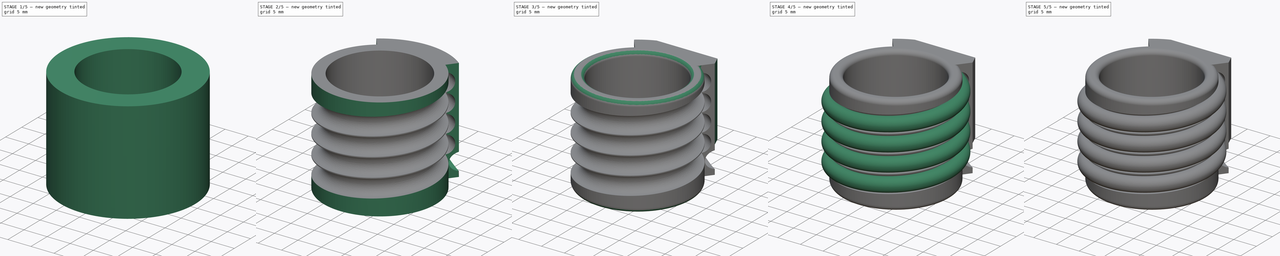
[diagram: build sequence overview — one tinted view per stage of 5, left to right]
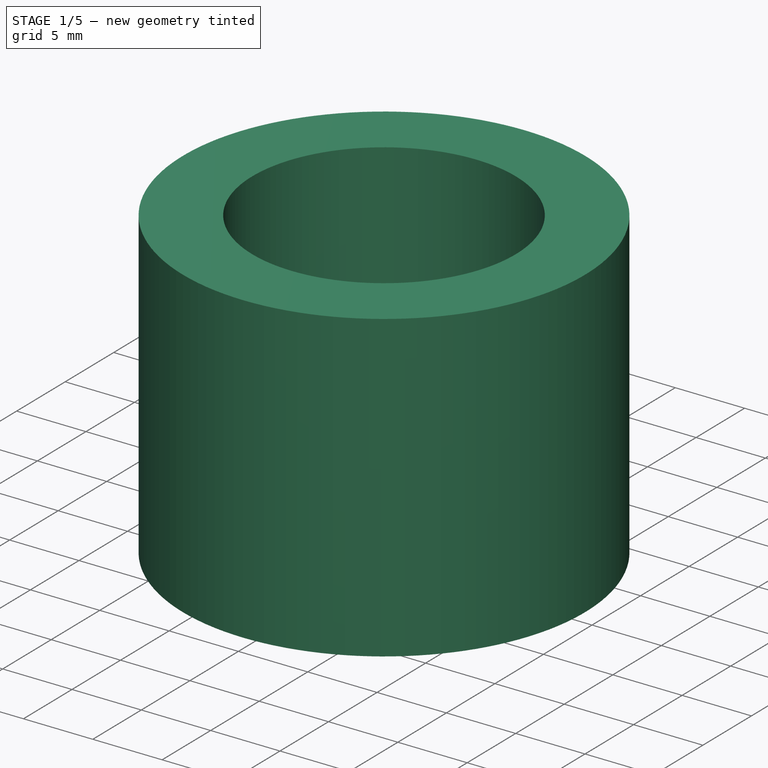
[diagram: stage 1 of 5 — iso view after this stage's code; geometry added in this stage tinted green]
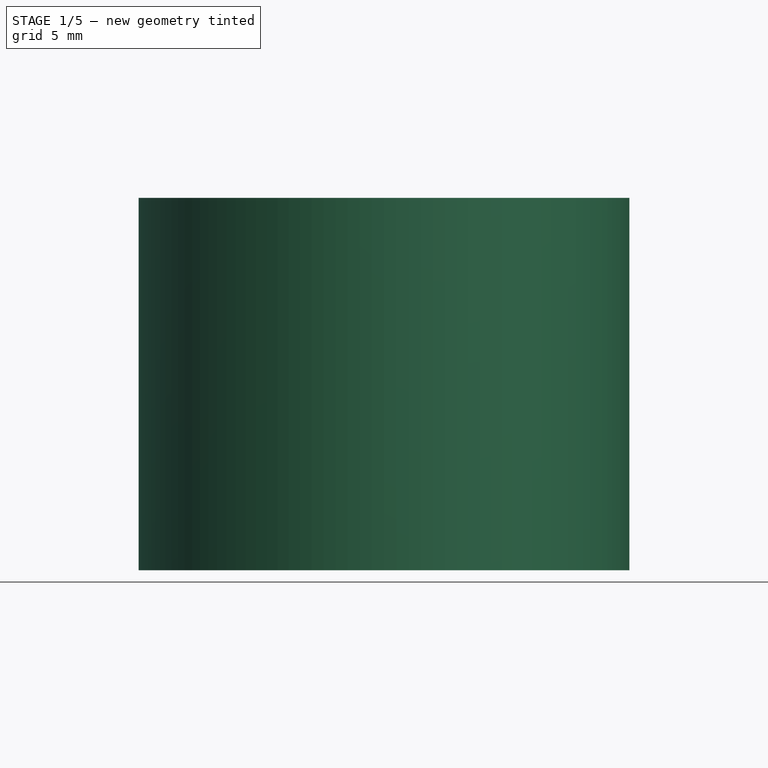
[diagram: stage 1 of 5 — front view after this stage's code; geometry added in this stage tinted green]
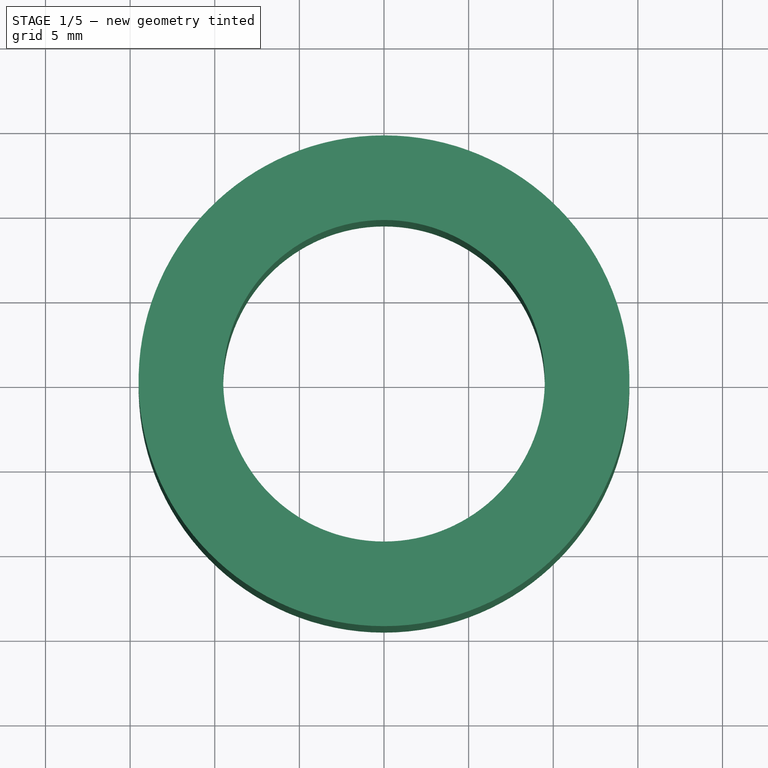
[diagram: stage 1 of 5 — top view after this stage's code; geometry added in this stage tinted green]
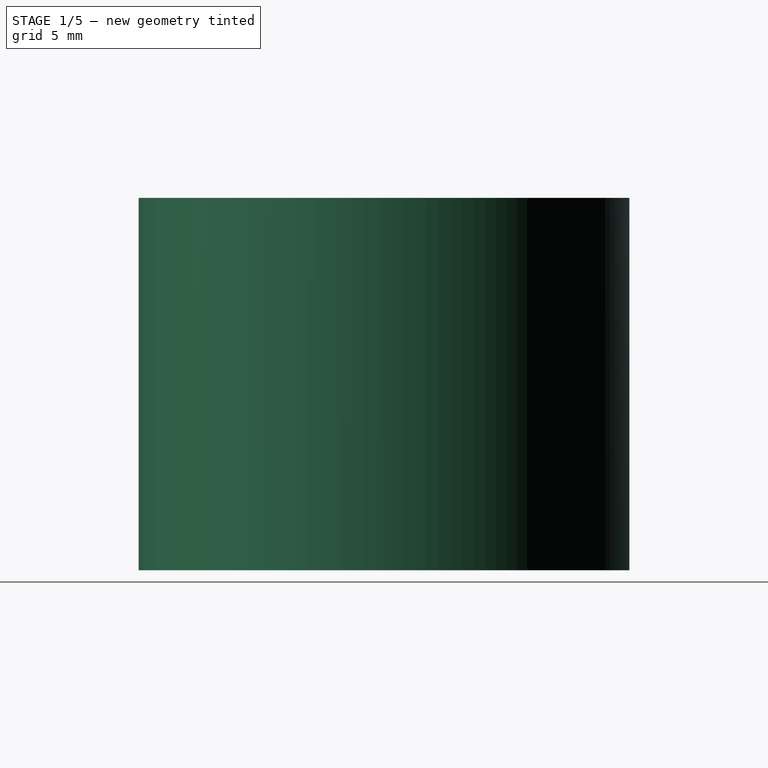
[diagram: stage 1 of 5 — right view after this stage's code; geometry added in this stage tinted green]
FCSTD DOCUMENT  (FreeCAD 1.0R38806 (Git))
Label: LED_ring_v1
License: CERN Open Hardware Licence strongly-reciprocal
LicenseURL: https://cern-ohl.web.cern.ch/
objects: Sketcher::SketchObject×13, Part::Feature×7, PartDesign::Plane×6, PartDesign::Pocket×6, PartDesign::Pad×4, PartDesign::Body×3, PartDesign::AdditiveHelix×2, PartDesign::Fillet×2, PartDesign::SubShapeBinder×2, App::Part×2, PartDesign::Revolution×1, PartDesign::Boolean×1
note: 91 computed .brp shape members not serialized (recipe doc carries the construction recipe); baked Part::Feature solids carry a one-line shape summary decoded from their .brp

FEATURE [PartDesign::Body] Body  label="LED"
  AllowCompound = false
  Group = -> [Sketch,AdditiveHelix,Sketch001,DatumPlane,DatumPlane001,DatumPlane002,Sketch002,Pocket,Sketch003,Pocket001,Pad,Sketch004,Pad001,Fillet]
  Origin = -> Origin
  Tip = -> Fillet
FEATURE [Sketcher::SketchObject] Sketch005
  ArcFitTolerance = 1e-06
  AttachmentSupport = -> [YZ_Plane001]
  FullyConstrained = true
  MakeInternals = false
  MapMode = 5
  Placement = pos=(0,0,0) rot=(0.57735,0.57735,0.57735;2.0944rad)
  sketch-geometry (10):
    g0: LineSegment StartX=14.5 StartY=19 StartZ=0 EndX=9.5 EndY=19 EndZ=0
    g1: LineSegment StartX=9.5 StartY=19 StartZ=0 EndX=9.5 EndY=-3 EndZ=0
    g2: LineSegment StartX=9.5 StartY=-3 StartZ=0 EndX=14.5 EndY=-3 EndZ=0
    g3: LineSegment StartX=14.5 StartY=-3 StartZ=0 EndX=14.5 EndY=19 EndZ=0
    g4: LineSegment [constr] StartX=12 StartY=0 StartZ=0 EndX=12 EndY=4 EndZ=0
    g5: LineSegment [constr] StartX=12 StartY=4 StartZ=0 EndX=12 EndY=8 EndZ=0
    g6: LineSegment [constr] StartX=12 StartY=8 StartZ=0 EndX=12 EndY=12 EndZ=0
    g7: LineSegment [constr] StartX=12 StartY=12 StartZ=0 EndX=12 EndY=16 EndZ=0
    g8: LineSegment [constr] StartX=12 StartY=0 StartZ=0 EndX=12 EndY=-3 EndZ=0
    g9: LineSegment [constr] StartX=12 StartY=16 StartZ=0 EndX=12 EndY=19 EndZ=0
  constraints (30):
    c: Coincident(g0,g1)
    c: Coincident(g1,g2)
    c: Coincident(g2,g3)
    c: Coincident(g3,g0)
    c: Horizontal(g0)
    c: Horizontal(g2)
    c: Vertical(g1)
    c: Vertical(g3)
    c: Distance(g0,g0) = 5
    c: PointOnObject(g4,g-1)
    c: Vertical(g4)
    c: Coincident(g5,g4)
    c: Vertical(g5)
    c: Coincident(g6,g5)
    c: Vertical(g6)
    c: Vertical(g7)
    c: Equal(g7,g6)
    c: Equal(g6,g5)
    c: Equal(g5,g4)
    c: Coincident(g6,g7)
    c: Distance(g4,g-1) = 12
    c: Distance(g1,g-2) = 9.5
    c: Distance(g4,g4) = 4
    c: Coincident(g8,g4)
    c: Symmetric(g2,g2,g8)
    c: Vertical(g8)
    c: Coincident(g9,g7)
    c: Symmetric(g0,g0,g9)
    c: Equal(g9,g8)
    c: Distance(g8,g8) = 3
FEATURE [PartDesign::SubShapeBinder] Binder
  BindCopyOnChange = 0
  BindMode = 0
  ClaimChildren = false
  Context = -> Body001 [Binder.]
  Fuse = false
  MakeFace = true
  OffsetFill = false
  OffsetIntersection = false
  OffsetJoinType = 0
  OffsetOpenResult = false
  PartialLoad = false
  Refine = true
  Relative = true
  Support = -> [Part__Feature]
  _Version = 2
FEATURE [Sketcher::SketchObject] Sketch006
  ArcFitTolerance = 0
  FullyConstrained = true
  MakeInternals = false
  MapMode = 5
  Placement = pos=(0,0,0) rot=(0.57735,0.57735,0.57735;2.0944rad)
  sketch-geometry (1):
    g0: Circle CenterX=11.93 CenterY=0 CenterZ=0 NormalX=0 NormalY=0 NormalZ=1 AngleXU=0 Radius=1.9
  constraints (3):
    c: PointOnObject(g0,g-1)
    c: Diameter(g0) = 3.8
    c: DistanceX(g-1,g0) = 11.93
FEATURE [PartDesign::AdditiveHelix] AdditiveHelix001
  Angle = 0
  Axis = (1e-16,-1e-16,1)
  Base = (0,0,0)
  Growth = 0
  HasBeenEdited = true
  Height = 16
  LeftHanded = false
  Mode = 1
  Outside = false
  Pitch = 4
  Placement = pos=(0,0,0) rot=(0.57735,0.57735,0.57735;2.0944rad)
  Profile = -> Sketch006
  ReferenceAxis = -> Sketch006 [V_Axis]
  Refine = true
  Suppressed = false
  Turns = 4
FEATURE [PartDesign::Plane] DatumPlane003
  AttachmentSupport = -> [AdditiveHelix001]
  Length = 60
  MapMode = 5
  Placement = pos=(4e-15,0,0) rot=(0.57735,0.57735,0.57735;2.0944rad)
  ResizeMode = 0
  Width = 60
FEATURE [PartDesign::Plane] DatumPlane004
  AttachmentOffset = pos=(0,0,0) rot=(0,1,0;0.436332rad)
  AttachmentSupport = -> [DatumPlane003]
  Length = 77.9742
  MapMode = 5
  Placement = pos=(4e-15,0,0) rot=(0.410726,0.644711,0.644711;2.36216rad)
  ResizeMode = 0
  Width = 61.5279
FEATURE [PartDesign::Plane] DatumPlane005
  AttachmentOffset = pos=(0,0,0) rot=(0,-1,0;0.872665rad)
  AttachmentSupport = -> [DatumPlane004]
  Length = 77.9742
  MapMode = 5
  Placement = pos=(4e-15,0,0) rot=(0.742942,0.473306,0.473306;1.86366rad)
  ResizeMode = 0
  Width = 61.5279
FEATURE [PartDesign::Body] Body002
  AllowCompound = false
  Group = -> [Sketch006,AdditiveHelix001,DatumPlane003,DatumPlane004,DatumPlane005]
  Origin = -> Origin002
  Tip = -> AdditiveHelix001
FEATURE [PartDesign::SubShapeBinder] Binder002
  BindCopyOnChange = 0
  BindMode = 0
  ClaimChildren = false
  Context = -> Body001 [Binder002.]
  Fuse = false
  MakeFace = true
  OffsetFill = false
  OffsetIntersection = false
  OffsetJoinType = 0
  OffsetOpenResult = false
  PartialLoad = false
  Refine = true
  Relative = true
  Support = -> [Body002]
  _Version = 2
FEATURE [PartDesign::Revolution] Revolution
  Angle = 360
  Angle2 = 60
  Axis = (0,0,1)
  Base = (0,0,0)
  Placement = pos=(0,0,0) rot=(1,1,1;2.0944rad)
  Profile = -> Sketch005
  ReferenceAxis = -> Sketch005 [V_Axis]
  Refine = true
  Reversed = true
  Suppressed = false
  Type = 0
FEATURE [PartDesign::Boolean] Boolean
  BaseFeature = -> Revolution
  Group = -> [Body002]
  Refine = true
  Suppressed = false
  Type = 1
  UsePlacement = true
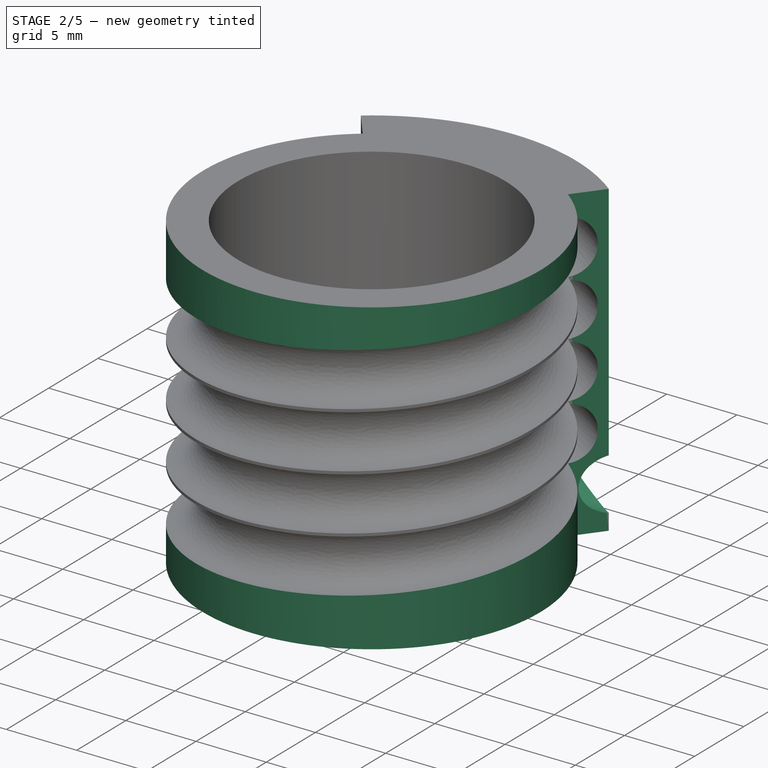
[diagram: stage 2 of 5 — iso view after this stage's code; geometry added in this stage tinted green]
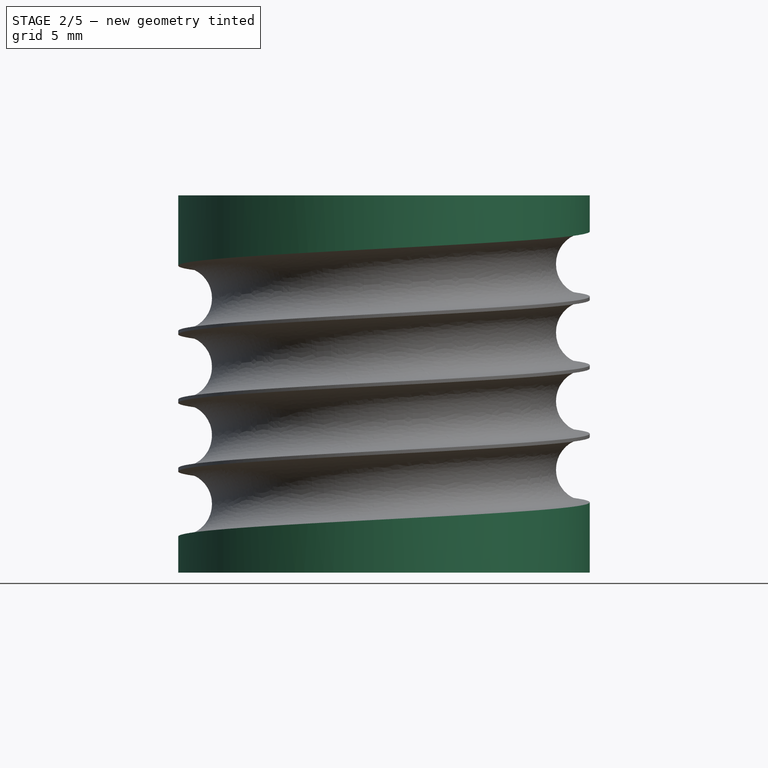
[diagram: stage 2 of 5 — front view after this stage's code; geometry added in this stage tinted green]
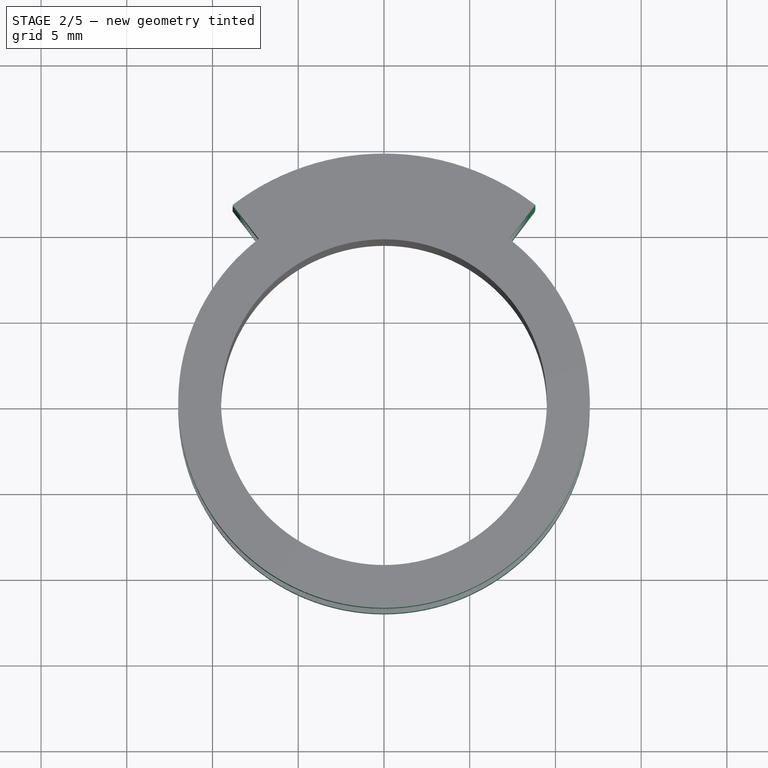
[diagram: stage 2 of 5 — top view after this stage's code; geometry added in this stage tinted green]
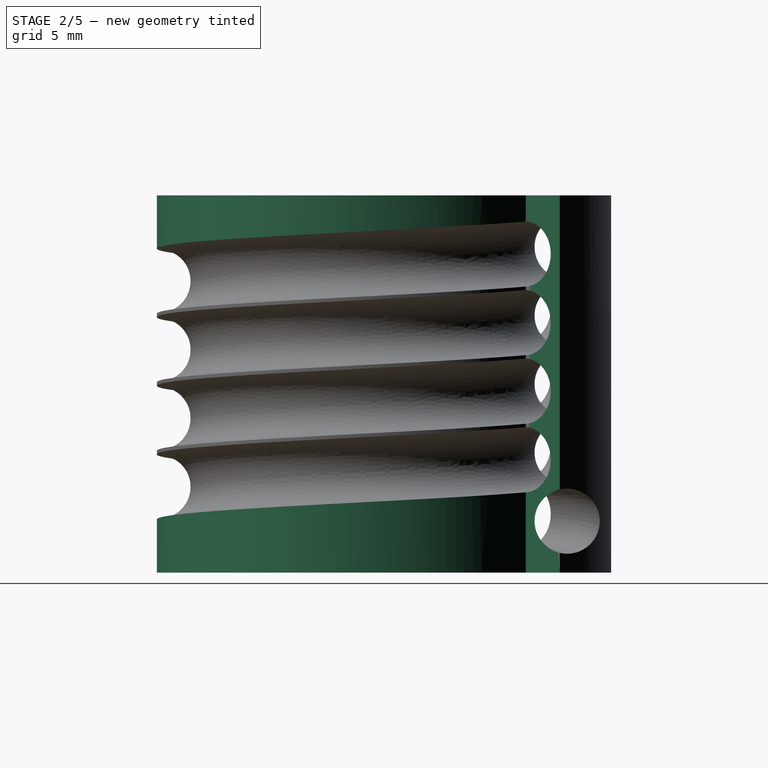
[diagram: stage 2 of 5 — right view after this stage's code; geometry added in this stage tinted green]
FEATURE [Sketcher::SketchObject] Sketch007
  ArcFitTolerance = 1e-06
  AttachmentSupport = -> [Boolean]
  ExternalGeometry = -> [Boolean]
  FullyConstrained = true
  MakeInternals = false
  MapMode = 5
  Placement = pos=(-4.2e-15,0,19) rot=(0,0,1;0rad)
  sketch-geometry (4):
    g0: ArcOfCircle CenterX=0 CenterY=0 CenterZ=0 NormalX=0 NormalY=0 NormalZ=1 AngleXU=0 Radius=12 StartAngle=2.22529 EndAngle=7.19948
    g1: ArcOfCircle CenterX=0 CenterY=0 CenterZ=0 NormalX=0 NormalY=0 NormalZ=1 AngleXU=0 Radius=14.5 StartAngle=2.22529 EndAngle=7.19948
    g2: LineSegment StartX=-8.82704 StartY=11.5036 StartZ=0 EndX=-7.30514 EndY=9.52024 EndZ=0
    g3: LineSegment StartX=8.82704 StartY=11.5036 StartZ=0 EndX=7.30514 EndY=9.52024 EndZ=0
  constraints (12):
    c: Coincident(g0,g1)
    c: Coincident(g0,g-3)
    c: PointOnObject(g1,g-4)
    c: Coincident(g2,g1)
    c: Coincident(g2,g0)
    c: Coincident(g3,g1)
    c: Coincident(g3,g0)
    c: Perpendicular(g1,g3)
    c: Perpendicular(g1,g2)
    c: Horizontal(g0,g0)
    c: Angle(g3,g2) = 1.309
    c: Distance(g2,g2) = 2.5
FEATURE [PartDesign::Pocket] Pocket002
  BaseFeature = -> Boolean
  Direction = (0,0,-1)
  Length = 5
  Length2 = 5
  Profile = -> Sketch007
  ReferenceAxis = -> Sketch007 [N_Axis]
  Refine = true
  Suppressed = false
  Type = 1
FEATURE [Sketcher::SketchObject] Sketch008
  ArcFitTolerance = 1e-06
  AttachmentSupport = -> [YZ_Plane001]
  FullyConstrained = true
  MakeInternals = false
  MapMode = 5
  Placement = pos=(0,0,0) rot=(0.57735,0.57735,0.57735;2.0944rad)
  sketch-geometry (1):
    g0: Circle CenterX=11.93 CenterY=0 CenterZ=0 NormalX=0 NormalY=0 NormalZ=1 AngleXU=0 Radius=1.9
  constraints (3):
    c: PointOnObject(g0,g-1)
    c: Diameter(g0) = 3.8
    c: Distance(g0,g-2) = 11.93
FEATURE [PartDesign::Pocket] Pocket003
  BaseFeature = -> Pocket002
  Direction = (-1,0,0)
  Length = 17
  Length2 = 5
  Profile = -> Sketch008
  ReferenceAxis = -> Sketch008 [N_Axis]
  Refine = true
  Reversed = true
  Suppressed = false
  Type = 0
FEATURE [Sketcher::SketchObject] Sketch009
  ArcFitTolerance = 1e-06
  AttachmentSupport = -> [YZ_Plane001]
  FullyConstrained = true
  MakeInternals = false
  MapMode = 5
  Placement = pos=(0,0,0) rot=(0.57735,0.57735,0.57735;2.0944rad)
  sketch-geometry (1):
    g0: Circle CenterX=11.93 CenterY=16 CenterZ=0 NormalX=0 NormalY=0 NormalZ=1 AngleXU=0 Radius=1.9
  constraints (3):
    c: Diameter(g0) = 3.8
    c: Distance(g0,g-2) = 11.93
    c: Distance(g0,g-1) = 16
FEATURE [PartDesign::Pocket] Pocket004
  BaseFeature = -> Pocket003
  Direction = (-1,0,0)
  Length = 16
  Length2 = 5
  Profile = -> Sketch009
  ReferenceAxis = -> Sketch009 [N_Axis]
  Refine = true
  Suppressed = false
  Type = 0
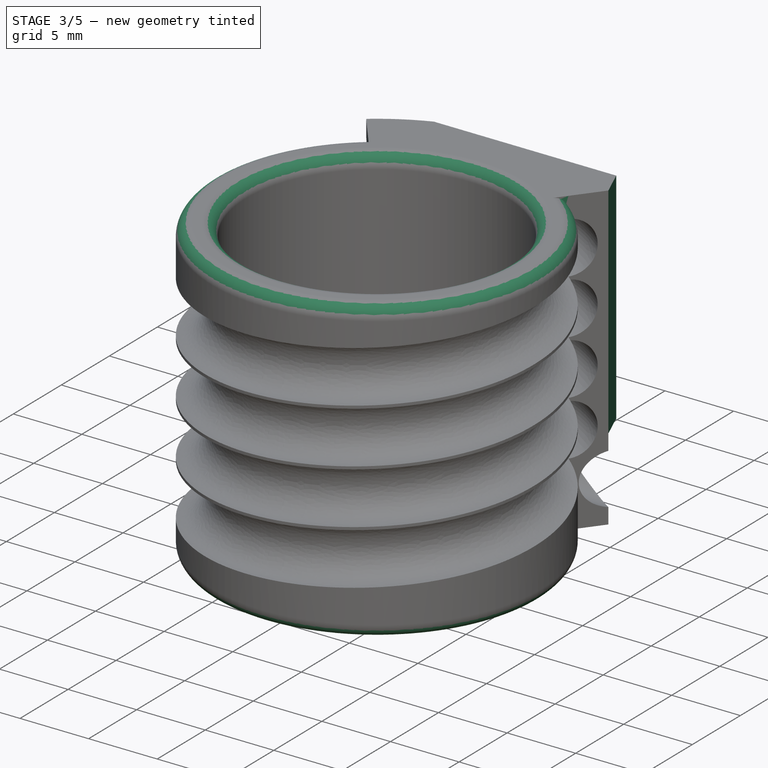
[diagram: stage 3 of 5 — iso view after this stage's code; geometry added in this stage tinted green]
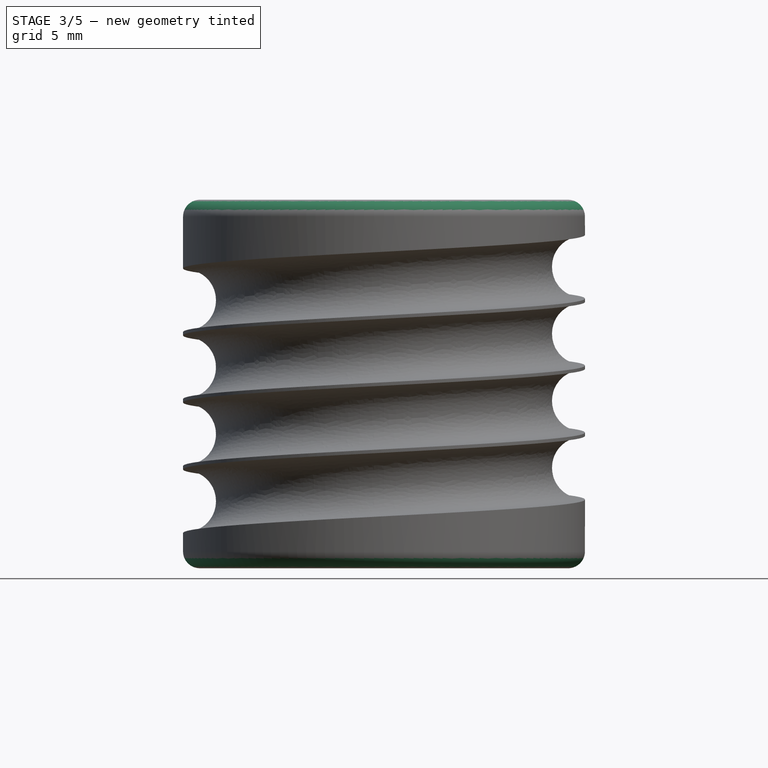
[diagram: stage 3 of 5 — front view after this stage's code; geometry added in this stage tinted green]
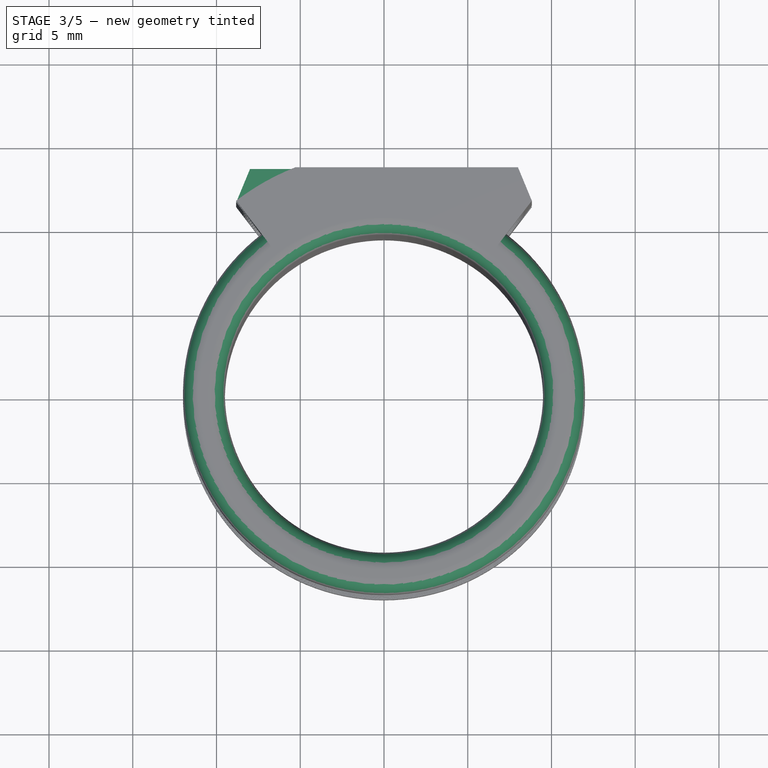
[diagram: stage 3 of 5 — top view after this stage's code; geometry added in this stage tinted green]
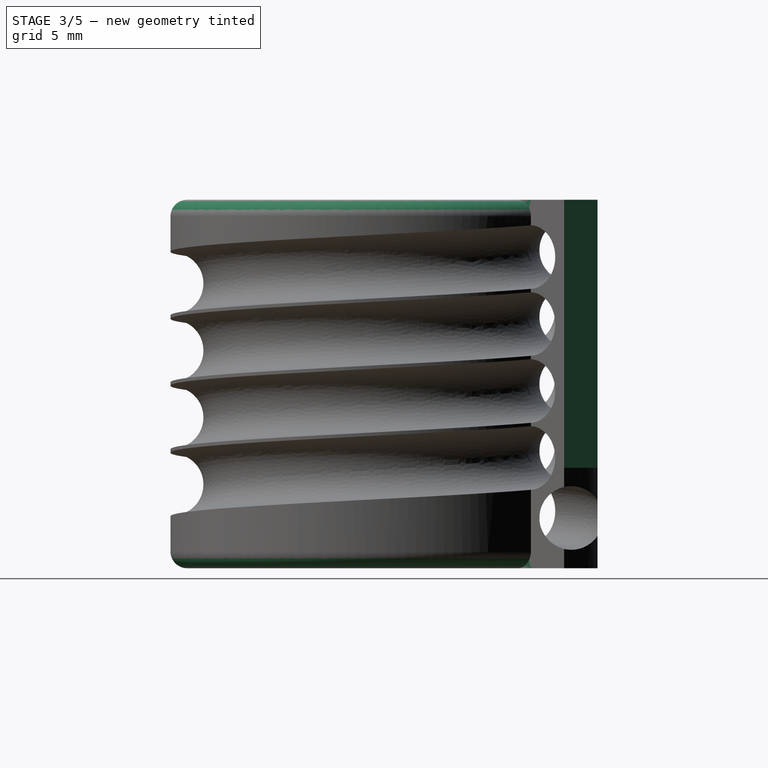
[diagram: stage 3 of 5 — right view after this stage's code; geometry added in this stage tinted green]
FEATURE [Sketcher::SketchObject] Sketch010
  ArcFitTolerance = 1e-06
  AttachmentSupport = -> [XY_Plane001]
  ExternalGeometry = -> [Pocket004]
  FullyConstrained = true
  MakeInternals = false
  MapMode = 5
  sketch-geometry (4):
    g0: LineSegment StartX=-8.82704 StartY=14.5 StartZ=0 EndX=-8.82704 EndY=13.5 EndZ=0
    g1: LineSegment StartX=-8.82704 StartY=13.5 StartZ=0 EndX=8.82704 EndY=13.5 EndZ=0
    g2: LineSegment StartX=8.82704 StartY=13.5 StartZ=0 EndX=8.82704 EndY=14.5 EndZ=0
    g3: LineSegment StartX=8.82704 StartY=14.5 StartZ=0 EndX=-8.82704 EndY=14.5 EndZ=0
  constraints (11):
    c: Coincident(g0,g1)
    c: Coincident(g1,g2)
    c: Coincident(g2,g3)
    c: Coincident(g3,g0)
    c: Vertical(g0)
    c: Vertical(g2)
    c: Horizontal(g1)
    c: Symmetric(g0,g2,g-2)
    c: Tangent(g3,g-3)
    c: Vertical(g0,g-3)
    c: Distance(g0,g0) = 1
FEATURE [PartDesign::Pocket] Pocket005
  BaseFeature = -> Pocket004
  Direction = (0,0,-1)
  Length = 4
  Length2 = 20
  Profile = -> Sketch010
  ReferenceAxis = -> Sketch010 [N_Axis]
  Refine = true
  Suppressed = false
  Type = 4
FEATURE [Part::Feature] Part__Feature001  label="SOLID"
  shape: bbox 16 x 5.5 x 23.5 mm, 193 faces (baked)
FEATURE [Part::Feature] Part__Feature002  label="SOLID001"
  shape: bbox 5.051 x 4.651 x 9.501 mm, 91 faces (baked)
FEATURE [Part::Feature] Part__Feature003  label="SOLID002"
  shape: bbox 5.051 x 4.651 x 12.85 mm, 93 faces (baked)
FEATURE [App::Part] _378379_1  label="BATT_HOLDER"
  Group = -> [Part__Feature001,Part__Feature002,Part__Feature003]
  Origin = -> Origin003
  Placement = pos=(0,13.5,8) rot=(0,0,1;0rad)
FEATURE [Sketcher::SketchObject] Sketch011
  ArcFitTolerance = 1e-06
  AttachmentSupport = -> [Pocket005]
  ExternalGeometry = -> [Pocket005]
  FullyConstrained = true
  MakeInternals = false
  MapMode = 5
  Placement = pos=(7e-16,0,-3) rot=(1,0,0;3.14159rad)
  sketch-geometry (5):
    g0: LineSegment StartX=-8.82704 StartY=-11.5036 StartZ=0 EndX=-8.32704 EndY=-11.5036 EndZ=0
    g1: LineSegment StartX=-8 StartY=-13.5 StartZ=0 EndX=-8.82704 EndY=-11.5036 EndZ=0
    g2: LineSegment StartX=-4.7915 StartY=-13.5 StartZ=0 EndX=-8 EndY=-13.5 EndZ=0
    g3: LineSegment StartX=-4.7915 StartY=-13.5 StartZ=0 EndX=-4.7915 EndY=-13 EndZ=0
    g4: LineSegment StartX=-4.7915 StartY=-13 StartZ=0 EndX=-8.32704 EndY=-11.5036 EndZ=0
  constraints (14):
    c: Coincident(g-3,g0)
    c: Horizontal(g0)
    c: Coincident(g2,g1)
    c: Coincident(g1,g0)
    c: PointOnObject(g-5,g2)
    c: Horizontal(g2)
    c: Coincident(g3,g4)
    c: Distance(g4,g0) = 0.5
    c: Vertical(g3)
    c: Distance(g3,g3) = 0.5
    c: Distance(g-5,g3) = 0.5
    c: Coincident(g0,g4)
    c: Coincident(g2,g3)
    c: Distance(g1,g-2) = 8
FEATURE [PartDesign::Pad] Pad002
  BaseFeature = -> Pocket005
  Direction = (0,0,-1)
  Length = 16
  Length2 = 10
  Profile = -> Sketch011
  ReferenceAxis = -> Sketch011 [N_Axis]
  Refine = true
  Reversed = true
  Suppressed = false
  Type = 0
FEATURE [Sketcher::SketchObject] Sketch012
  ArcFitTolerance = 1e-06
  AttachmentSupport = -> [Pad002]
  ExternalGeometry = -> [Pad002]
  FullyConstrained = true
  MakeInternals = false
  MapMode = 5
  Placement = pos=(-4.2e-15,0,19) rot=(0,0,1;0rad)
  sketch-geometry (5):
    g0: LineSegment StartX=4.7915 StartY=13.5 StartZ=0 EndX=8 EndY=13.5 EndZ=0
    g1: LineSegment StartX=8 StartY=13.5 StartZ=0 EndX=8.82704 EndY=11.5036 EndZ=0
    g2: LineSegment StartX=8.82704 StartY=11.5036 StartZ=0 EndX=8.32704 EndY=11.5036 EndZ=0
    g3: LineSegment StartX=8.32704 StartY=11.5036 StartZ=0 EndX=4.7915 EndY=13 EndZ=0
    g4: LineSegment StartX=4.7915 StartY=13 StartZ=0 EndX=4.7915 EndY=13.5 EndZ=0
  constraints (14):
    c: PointOnObject(g0,g-4)
    c: Horizontal(g0)
    c: Coincident(g0,g1)
    c: Coincident(g1,g-3)
    c: Coincident(g1,g2)
    c: Coincident(g2,g3)
    c: Coincident(g3,g4)
    c: Coincident(g4,g0)
    c: Vertical(g4)
    c: Distance(g0,g-4) = 0.5
    c: Distance(g0,g3) = 0.5
    c: Distance(g2,g2) = 0.5
    c: Distance(g0,g-2) = 8
    c: Horizontal(g2)
FEATURE [PartDesign::Pad] Pad003
  BaseFeature = -> Pad002
  Direction = (0,0,1)
  Length = 16
  Length2 = 10
  Profile = -> Sketch012
  ReferenceAxis = -> Sketch012 [N_Axis]
  Refine = true
  Reversed = true
  Suppressed = false
  Type = 0
FEATURE [PartDesign::Fillet] Fillet001
  Base = -> Pad003 [Edge92,Edge93,Edge88,Edge20]
  BaseFeature = -> Pad003
  Radius = 1
  Refine = true
  SupportTransform = false
  Suppressed = false
  UseAllEdges = false
FEATURE [PartDesign::Body] Body001  label="RING"
  AllowCompound = false
  Group = -> [Sketch005,Binder,Binder002,Revolution,Boolean,Sketch007,Pocket002,Sketch008,Pocket003,Sketch009,Pocket004,Sketch010,Pocket005,Sketch011,Pad002,Sketch012,Pad003,Fillet001]
  Origin = -> Origin001
  Tip = -> Fillet001
FEATURE [Part::Feature] Part__Feature004  label="616B6058-AE88-4249-9038-1CA0AB3AD7B0"
  shape: bbox 8.88 x 5.068 x 3.509 mm, 39 faces (baked)
FEATURE [Part::Feature] Part__Feature005  label="616B6058-AE88-4249-9038-1CA0AB3AD7B001"
  shape: bbox 10.72 x 4.897 x 3.635 mm, 34 faces (baked)
FEATURE [Part::Feature] Part__Feature006  label="616B6058-AE88-4249-9038-1CA0AB3AD7B002"
  shape: bbox 29 x 5.3 x 20 mm, 157 faces (baked)
FEATURE [App::Part] _16B6058_AE88_4249_9038_1CA0AB3AD7B0  label="616B6058-AE88-4249-9038-1CA0AB3AD7B003"
  Group = -> [Part__Feature004,Part__Feature005,Part__Feature006]
  Origin = -> Origin004
  Placement = pos=(-1.8e-15,14,8) rot=(0,1,0;1.5708rad)
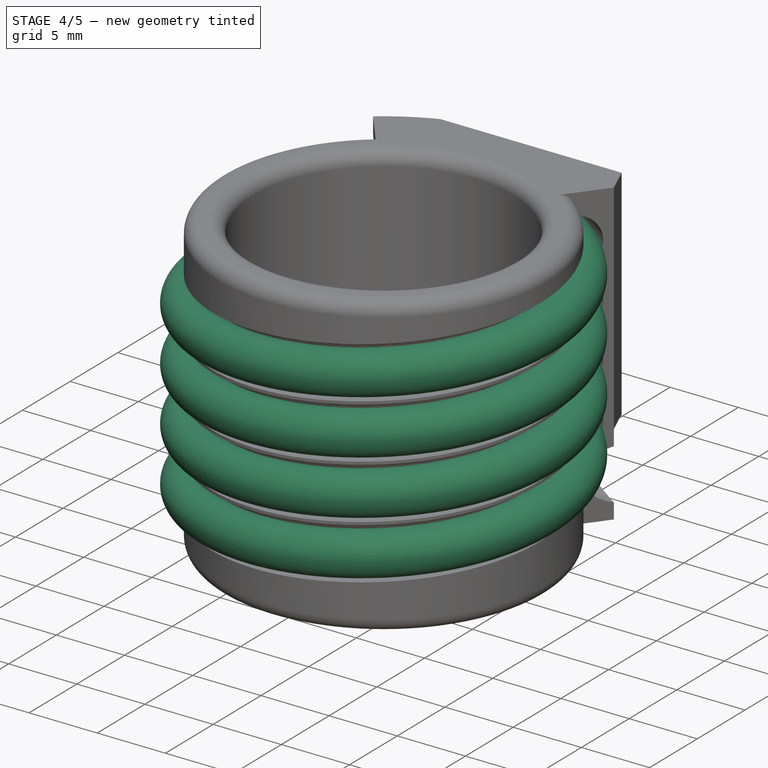
[diagram: stage 4 of 5 — iso view after this stage's code; geometry added in this stage tinted green]
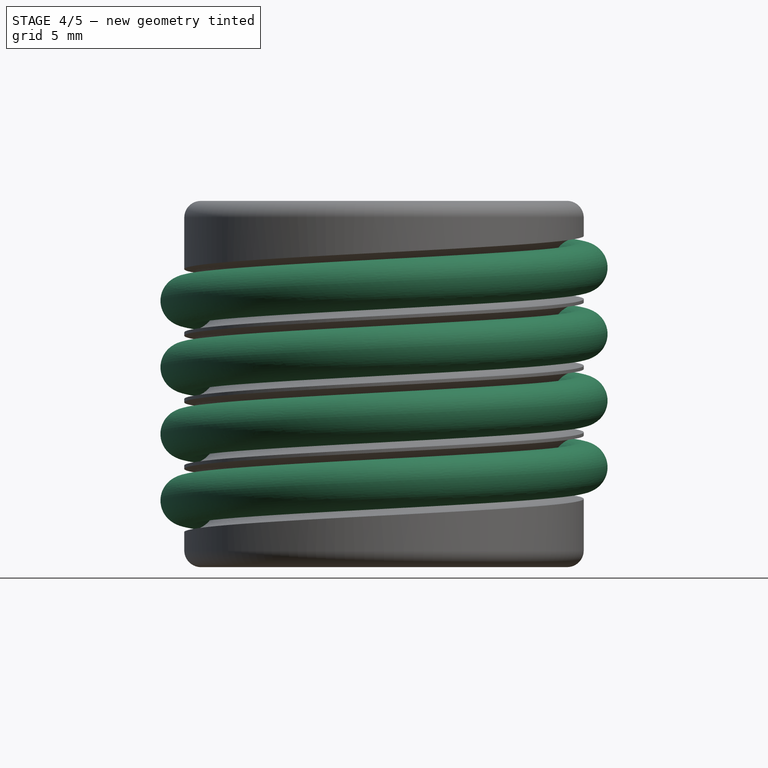
[diagram: stage 4 of 5 — front view after this stage's code; geometry added in this stage tinted green]
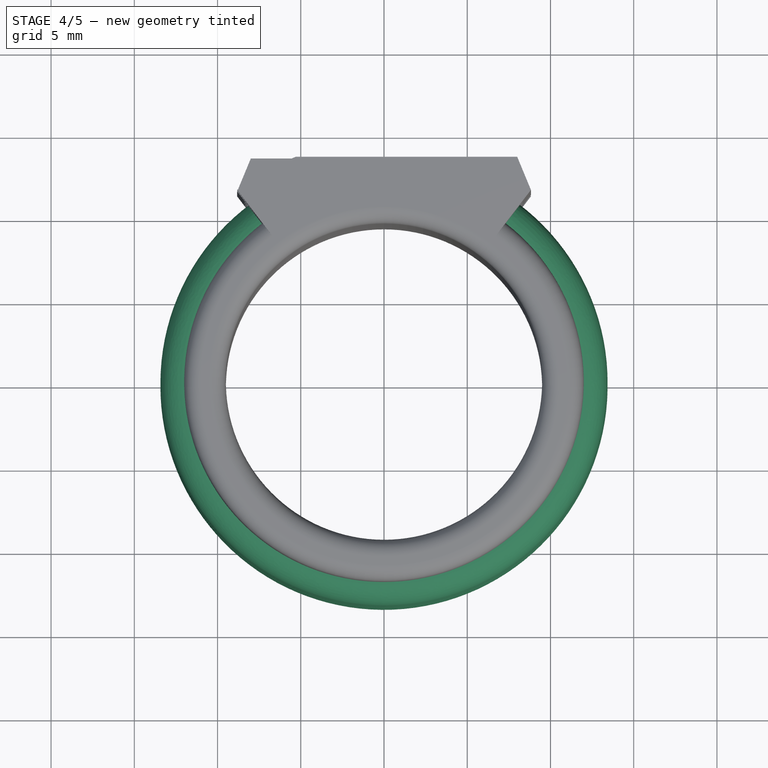
[diagram: stage 4 of 5 — top view after this stage's code; geometry added in this stage tinted green]
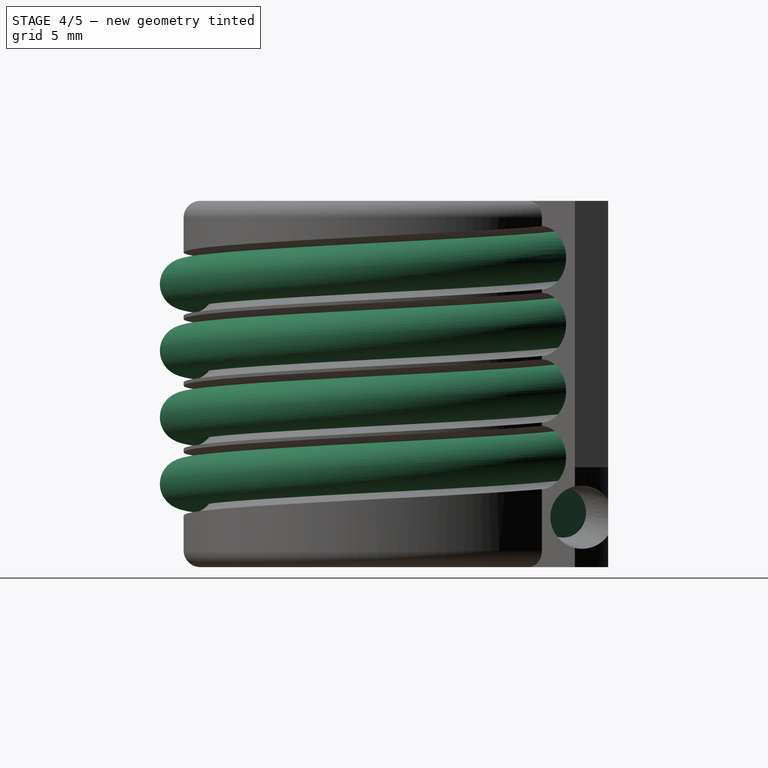
[diagram: stage 4 of 5 — right view after this stage's code; geometry added in this stage tinted green]
FEATURE [Sketcher::SketchObject] Sketch
  ArcFitTolerance = 0
  FullyConstrained = true
  MakeInternals = false
  MapMode = 5
  Placement = pos=(0,0,0) rot=(0.57735,0.57735,0.57735;2.0944rad)
  sketch-geometry (1):
    g0: Circle CenterX=11.93 CenterY=0 CenterZ=0 NormalX=0 NormalY=0 NormalZ=1 AngleXU=0 Radius=1.5
  constraints (3):
    c: PointOnObject(g0,g-1)
    c: Diameter(g0) = 3
    c: DistanceX(g-1,g0) = 11.93
FEATURE [PartDesign::AdditiveHelix] AdditiveHelix
  Angle = 0
  Axis = (1e-16,-1e-16,1)
  Base = (0,0,0)
  Growth = 0
  HasBeenEdited = true
  Height = 16
  LeftHanded = false
  Mode = 1
  Outside = false
  Pitch = 4
  Placement = pos=(0,0,0) rot=(0.57735,0.57735,0.57735;2.0944rad)
  Profile = -> Sketch
  ReferenceAxis = -> Sketch [V_Axis]
  Refine = true
  Suppressed = false
  Turns = 4
FEATURE [PartDesign::Plane] DatumPlane
  AttachmentSupport = -> [AdditiveHelix]
  Length = 60
  MapMode = 5
  Placement = pos=(4e-15,0,0) rot=(0.57735,0.57735,0.57735;2.0944rad)
  ResizeMode = 0
  Width = 60
FEATURE [PartDesign::Plane] DatumPlane001
  AttachmentOffset = pos=(0,0,0) rot=(0,1,0;0.436332rad)
  AttachmentSupport = -> [DatumPlane]
  Length = 77.9742
  MapMode = 5
  Placement = pos=(4e-15,0,0) rot=(0.410726,0.644711,0.644711;2.36216rad)
  ResizeMode = 0
  Width = 61.5279
FEATURE [PartDesign::Plane] DatumPlane002
  AttachmentOffset = pos=(0,0,0) rot=(0,-1,0;0.872665rad)
  AttachmentSupport = -> [DatumPlane001]
  Length = 77.9742
  MapMode = 5
  Placement = pos=(4e-15,0,0) rot=(0.742942,0.473306,0.473306;1.86366rad)
  ResizeMode = 0
  Width = 61.5279
FEATURE [Sketcher::SketchObject] Sketch002
  ArcFitTolerance = 1e-06
  AttachmentSupport = -> [DatumPlane001]
  FullyConstrained = true
  MakeInternals = false
  MapMode = 5
  Placement = pos=(4e-15,0,0) rot=(0.410726,0.644711,0.644711;2.36216rad)
  sketch-geometry (4):
    g0: ArcOfCircle CenterX=14 CenterY=0 CenterZ=0 NormalX=0 NormalY=0 NormalZ=1 AngleXU=0 Radius=1.9 StartAngle=4.71239 EndAngle=7.85398
    g1: ArcOfCircle CenterX=10 CenterY=-1e-16 CenterZ=0 NormalX=0 NormalY=0 NormalZ=1 AngleXU=0 Radius=1.9 StartAngle=1.5708 EndAngle=4.71239
    g2: LineSegment StartX=14 StartY=-1.9 StartZ=0 EndX=10 EndY=-1.9 EndZ=0
    g3: LineSegment StartX=14 StartY=1.9 StartZ=0 EndX=10 EndY=1.9 EndZ=0
  constraints (10):
    c: Tangent(g0,g2) = 1.5708
    c: Tangent(g0,g3) = -1.5708
    c: Tangent(g1,g2) = 1.5708
    c: Tangent(g1,g3) = -1.5708
    c: Equal(g0,g1)
    c: Horizontal(g3)
    c: PointOnObject(g0,g-1)
    c: Diameter(g1) = 3.8
    c: DistanceX(g1,g0) = 4
    c: DistanceX(g-1,g1) = 10
FEATURE [PartDesign::Pocket] Pocket
  BaseFeature = -> AdditiveHelix
  Direction = (-0.906308,-0.422618,-1e-16)
  Length = 10
  Length2 = 5
  Placement = pos=(0,0,0) rot=(0.57735,0.57735,0.57735;2.0944rad)
  Profile = -> Sketch002
  ReferenceAxis = -> Sketch002 [N_Axis]
  Refine = true
  Reversed = true
  Suppressed = false
  Type = 0
FEATURE [Sketcher::SketchObject] Sketch003
  ArcFitTolerance = 1e-06
  AttachmentSupport = -> [DatumPlane002]
  FullyConstrained = true
  MakeInternals = false
  MapMode = 5
  Placement = pos=(4e-15,0,0) rot=(-0.410726,0.644711,0.644711;3.92103rad)
  sketch-geometry (4):
    g0: ArcOfCircle CenterX=-14 CenterY=16 CenterZ=0 NormalX=0 NormalY=0 NormalZ=1 AngleXU=0 Radius=1.9 StartAngle=1.5708 EndAngle=4.71239
    g1: ArcOfCircle CenterX=-10 CenterY=16 CenterZ=0 NormalX=0 NormalY=0 NormalZ=1 AngleXU=0 Radius=1.9 StartAngle=4.71239 EndAngle=7.85398
    g2: LineSegment StartX=-14 StartY=17.9 StartZ=0 EndX=-10 EndY=17.9 EndZ=0
    g3: LineSegment StartX=-14 StartY=14.1 StartZ=0 EndX=-10 EndY=14.1 EndZ=0
  constraints (10):
    c: Tangent(g0,g2) = 1.5708
    c: Tangent(g0,g3) = -1.5708
    c: Tangent(g1,g2) = 1.5708
    c: Tangent(g1,g3) = -1.5708
    c: Equal(g0,g1)
    c: Horizontal(g2)
    c: Diameter(g0) = 3.8
    c: DistanceX(g0,g1) = 4
    c: DistanceX(g-2,g1) = -10
    c: DistanceY(g-1,g1) = 16
FEATURE [PartDesign::Pocket] Pocket001
  BaseFeature = -> Pocket
  Direction = (0.906308,-0.422618,2e-16)
  Length = 10
  Length2 = 5
  Placement = pos=(0,0,0) rot=(0.57735,0.57735,0.57735;2.0944rad)
  Profile = -> Sketch003
  ReferenceAxis = -> Sketch003 [N_Axis]
  Refine = true
  Reversed = true
  Suppressed = false
  Type = 0
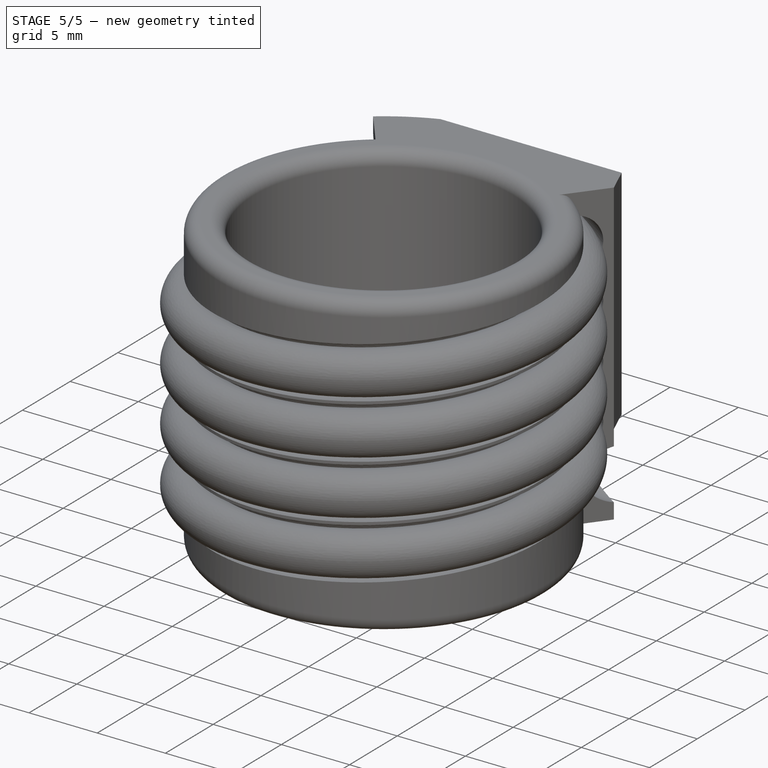
[diagram: stage 5 of 5 — iso view after this stage's code; geometry added in this stage tinted green]
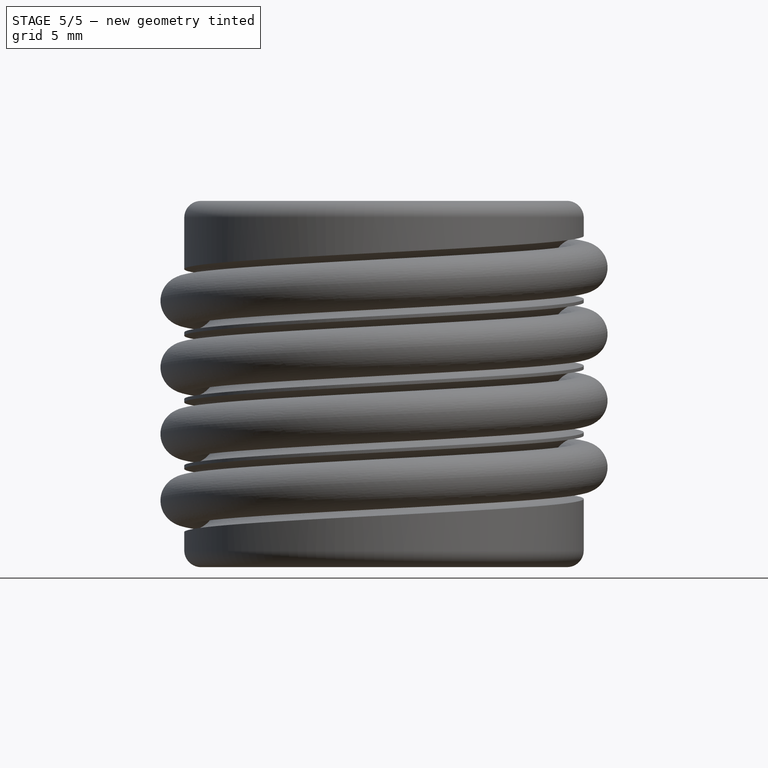
[diagram: stage 5 of 5 — front view after this stage's code; geometry added in this stage tinted green]
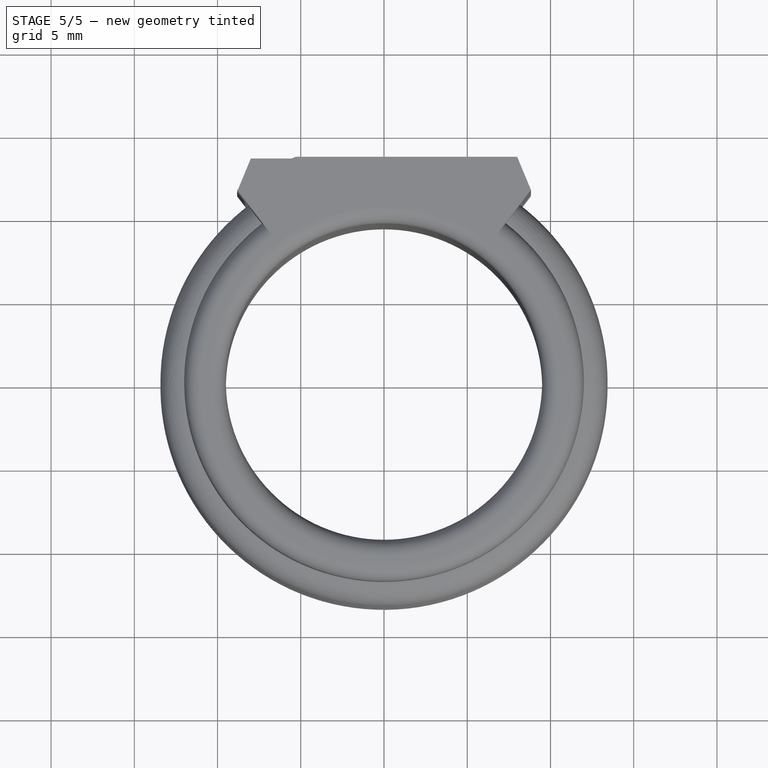
[diagram: stage 5 of 5 — top view after this stage's code; geometry added in this stage tinted green]
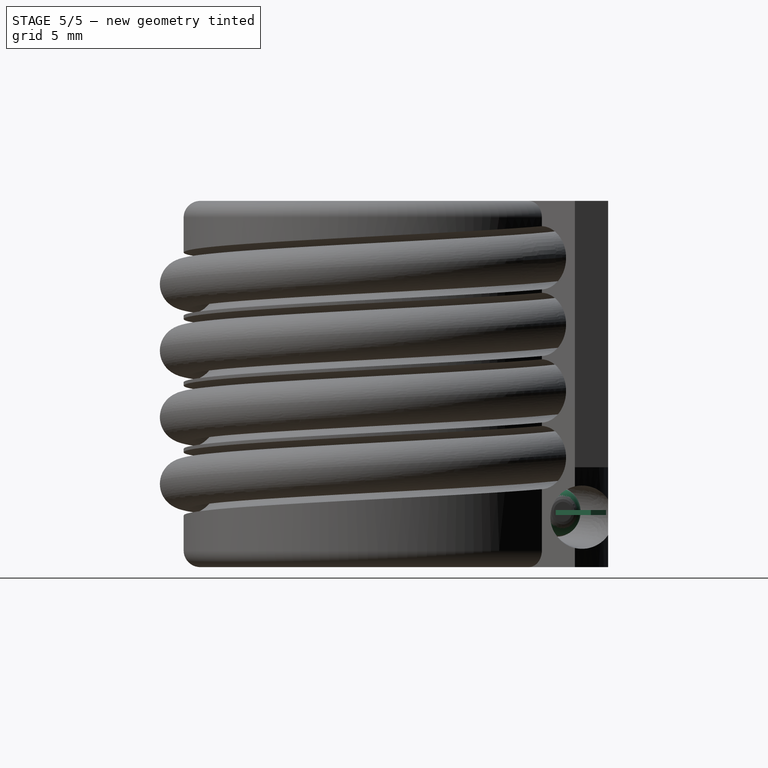
[diagram: stage 5 of 5 — right view after this stage's code; geometry added in this stage tinted green]
FEATURE [Sketcher::SketchObject] Sketch001
  ArcFitTolerance = 0
  AttachmentSupport = -> [Pocket001]
  FullyConstrained = true
  MakeInternals = false
  MapMode = 5
  Placement = pos=(3.2e-15,1.5e-15,0) rot=(0.410726,0.644711,0.644711;2.36216rad)
  sketch-geometry (8):
    g0: LineSegment StartX=11.4231 StartY=0.430665 StartZ=0 EndX=11.4231 EndY=0.130665 EndZ=0
    g1: LineSegment StartX=11.4231 StartY=0.130665 StartZ=0 EndX=12.4231 EndY=0.130665 EndZ=0
    g2: LineSegment StartX=12.4231 StartY=0.130665 StartZ=0 EndX=12.4231 EndY=0.430665 EndZ=0
    g3: LineSegment StartX=12.4231 StartY=0.430665 StartZ=0 EndX=11.4231 EndY=0.430665 EndZ=0
    g4: LineSegment [constr] StartX=11.4231 StartY=0.430665 StartZ=0 EndX=12.4231 EndY=0.130665 EndZ=0
    g5: LineSegment [constr] StartX=11.4231 StartY=0.130665 StartZ=0 EndX=11.9231 EndY=0.280665 EndZ=0
    g6: LineSegment [constr] StartX=12.4231 StartY=0.430665 StartZ=0 EndX=11.9231 EndY=0.280665 EndZ=0
    g7: Circle [constr] CenterX=11.9231 CenterY=0.280665 CenterZ=0 NormalX=0 NormalY=0 NormalZ=1 AngleXU=0 Radius=1.5
  constraints (21):
    c: Coincident(g0,g1)
    c: Coincident(g1,g2)
    c: Coincident(g2,g3)
    c: Coincident(g3,g0)
    c: Vertical(g0)
    c: Vertical(g2)
    c: Horizontal(g1)
    c: Horizontal(g3)
    c: DistanceY(g0,g0) = 0.3
    c: DistanceX(g3,g3) = 1
    c: Coincident(g4,g0)
    c: Coincident(g4,g1)
    c: Coincident(g5,g0)
    c: PointOnObject(g5,g4)
    c: Coincident(g6,g2)
    c: Coincident(g6,g5)
    c: Equal(g6,g5)
    c: Diameter(g7) = 3
    c: Coincident(g7,g5)
    c: DistanceX(g5) = 11.9231
    c: DistanceY(g5) = 0.280665
FEATURE [PartDesign::Pad] Pad
  BaseFeature = -> Pocket001
  Direction = (0.906308,0.422618,2e-16)
  Length = 5
  Length2 = 10
  Placement = pos=(0,0,0) rot=(0.57735,0.57735,0.57735;2.0944rad)
  Profile = -> Sketch001
  ReferenceAxis = -> Sketch001 [N_Axis]
  Refine = true
  Suppressed = false
  Type = 0
FEATURE [Sketcher::SketchObject] Sketch004
  ArcFitTolerance = 1e-06
  AttachmentSupport = -> [Pad]
  FullyConstrained = true
  MakeInternals = false
  MapMode = 5
  Placement = pos=(3.2e-15,-1.5e-15,0) rot=(-0.742942,-0.473306,0.473306;1.86366rad)
  sketch-geometry (9):
    g0: LineSegment StartX=11.4298 StartY=-15.5789 StartZ=0 EndX=11.4298 EndY=-15.8789 EndZ=0
    g1: LineSegment StartX=11.4298 StartY=-15.8789 StartZ=0 EndX=12.4298 EndY=-15.8789 EndZ=0
    g2: LineSegment StartX=12.4298 StartY=-15.8789 StartZ=0 EndX=12.4298 EndY=-15.5789 EndZ=0
    g3: LineSegment StartX=12.4298 StartY=-15.5789 StartZ=0 EndX=11.4298 EndY=-15.5789 EndZ=0
    g4: LineSegment [constr] StartX=11.4298 StartY=-15.5789 StartZ=0 EndX=11.9298 EndY=-15.7289 EndZ=0
    g5: LineSegment [constr] StartX=11.4298 StartY=-15.8789 StartZ=0 EndX=11.9298 EndY=-15.7289 EndZ=0
    g6: LineSegment [constr] StartX=11.9298 StartY=-15.7289 StartZ=0 EndX=12.4298 EndY=-15.5789 EndZ=0
    g7: LineSegment [constr] StartX=11.9298 StartY=-15.7289 StartZ=0 EndX=12.4298 EndY=-15.8789 EndZ=0
    g8: Circle [constr] CenterX=11.9298 CenterY=-15.7289 CenterZ=0 NormalX=0 NormalY=0 NormalZ=1 AngleXU=0 Radius=1.5
  constraints (23):
    c: Coincident(g0,g1)
    c: Coincident(g1,g2)
    c: Coincident(g2,g3)
    c: Coincident(g3,g0)
    c: Vertical(g0)
    c: Vertical(g2)
    c: Horizontal(g1)
    c: Horizontal(g3)
    c: Distance(g0,g2) = 1
    c: Distance(g1,g3) = 0.3
    c: Coincident(g4,g0)
    c: Coincident(g5,g0)
    c: Coincident(g5,g4)
    c: Coincident(g6,g4)
    c: Coincident(g6,g2)
    c: Coincident(g7,g4)
    c: Coincident(g7,g1)
    c: Equal(g5,g4)
    c: Equal(g4,g6)
    c: Diameter(g8) = 3
    c: Coincident(g4,g8)
    c: DistanceX(g4) = 11.9298
    c: DistanceY(g4) = -15.7289
FEATURE [PartDesign::Pad] Pad001
  BaseFeature = -> Pad
  Direction = (-0.906308,0.422618,0)
  Length = 5
  Length2 = 10
  Placement = pos=(0,0,0) rot=(0.57735,0.57735,0.57735;2.0944rad)
  Profile = -> Sketch004
  ReferenceAxis = -> Sketch004 [N_Axis]
  Refine = true
  Suppressed = false
  Type = 0
FEATURE [Part::Feature] Part__Feature  label="BATT_1632"
  Placement = pos=(0,18.5,8) rot=(1,0,0;1.5708rad)
  shape: bbox 17.32 x 3.2 x 17.32 mm, 11 faces (baked)
FEATURE [PartDesign::Fillet] Fillet
  Base = -> Pad001 [Edge1,Edge21]
  BaseFeature = -> Pad001
  Placement = pos=(0,0,0) rot=(0.57735,0.57735,0.57735;2.0944rad)
  Radius = 0.9
  Refine = true
  SupportTransform = false
  Suppressed = false
  UseAllEdges = false
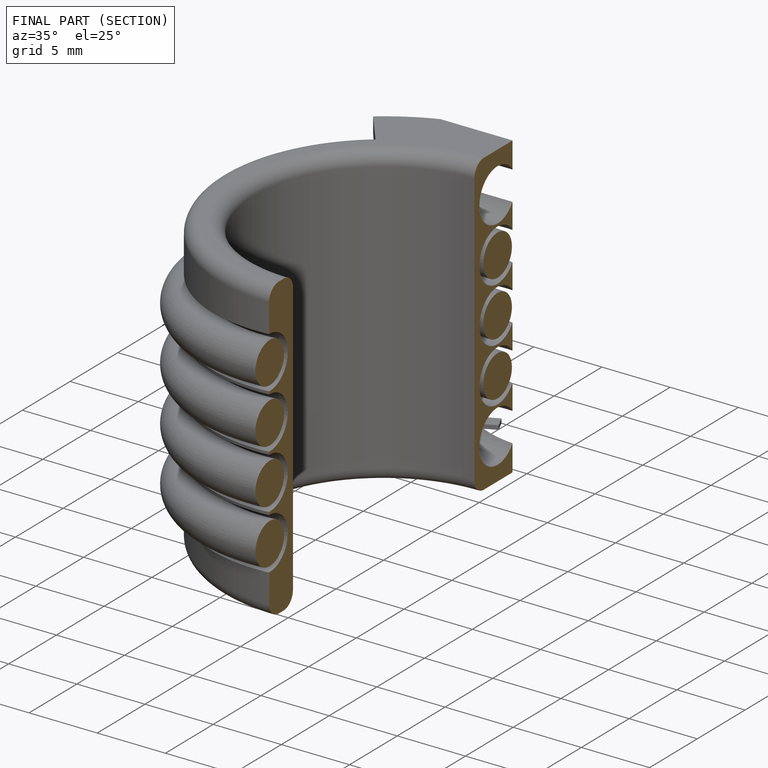
[diagram: finished part — half-section view (interior)]
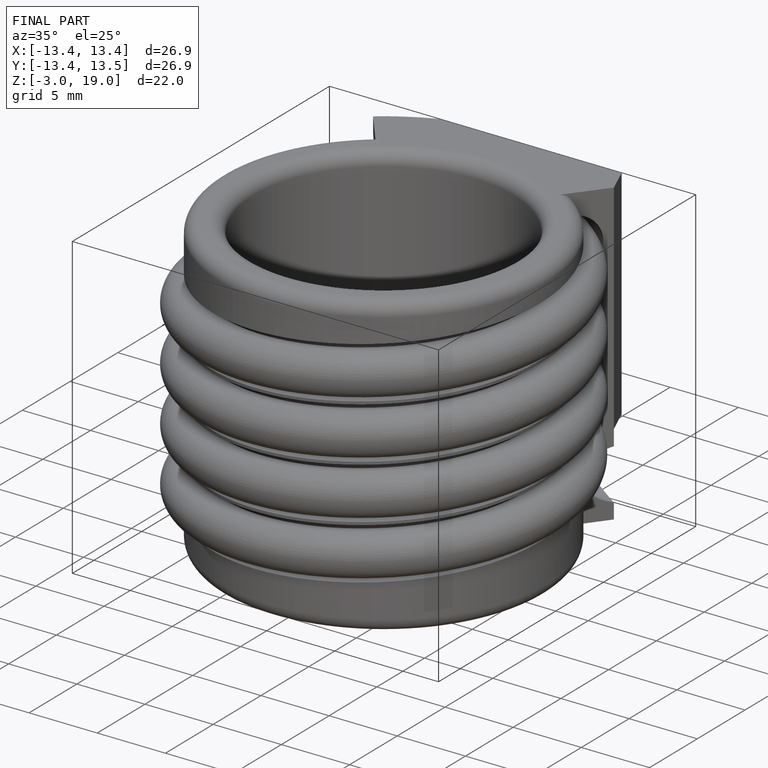
[diagram: finished part — iso view with bounding-box wireframe]
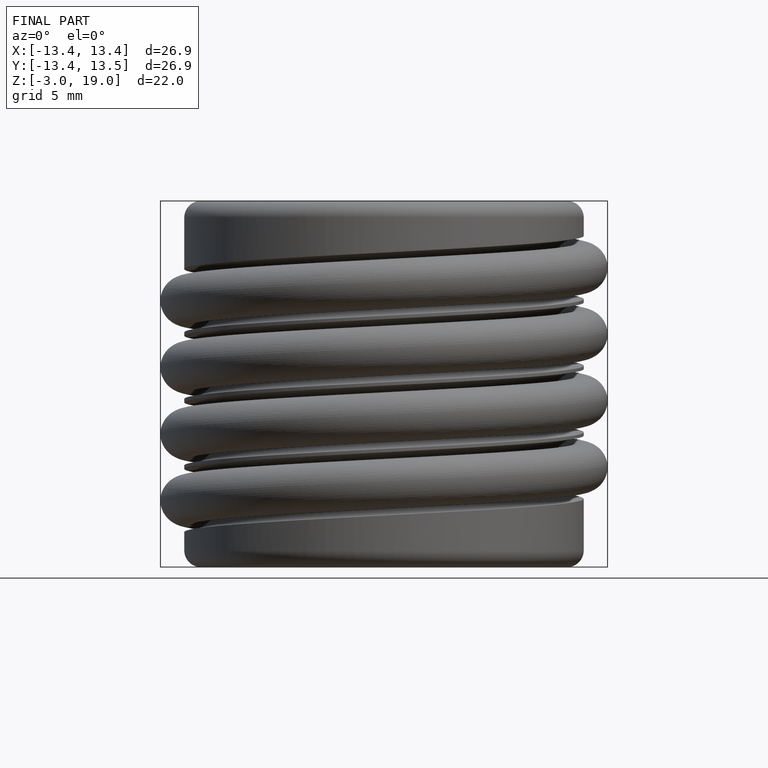
[diagram: finished part — front view with bounding-box wireframe]
